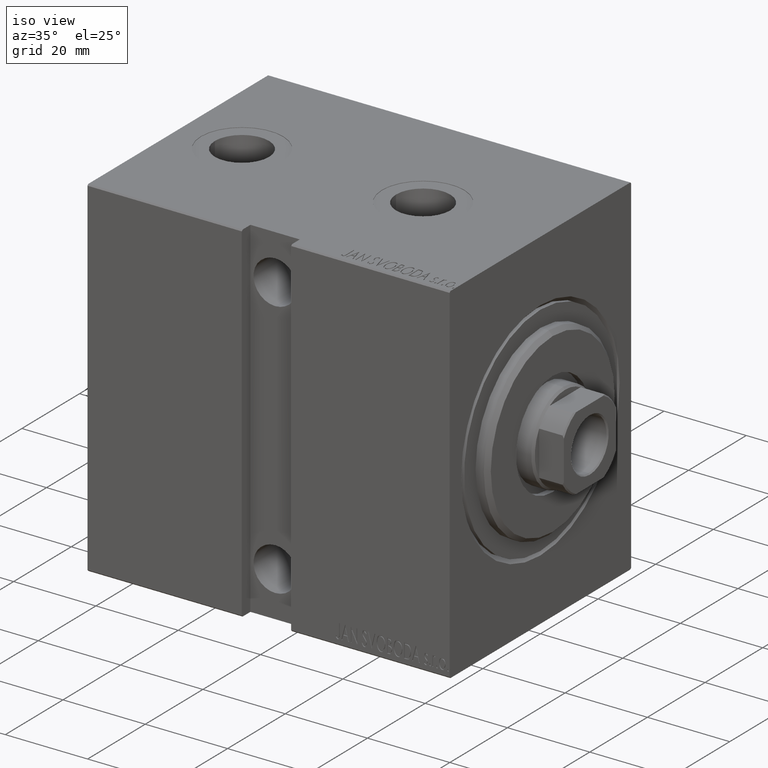
[diagram: clean part render]
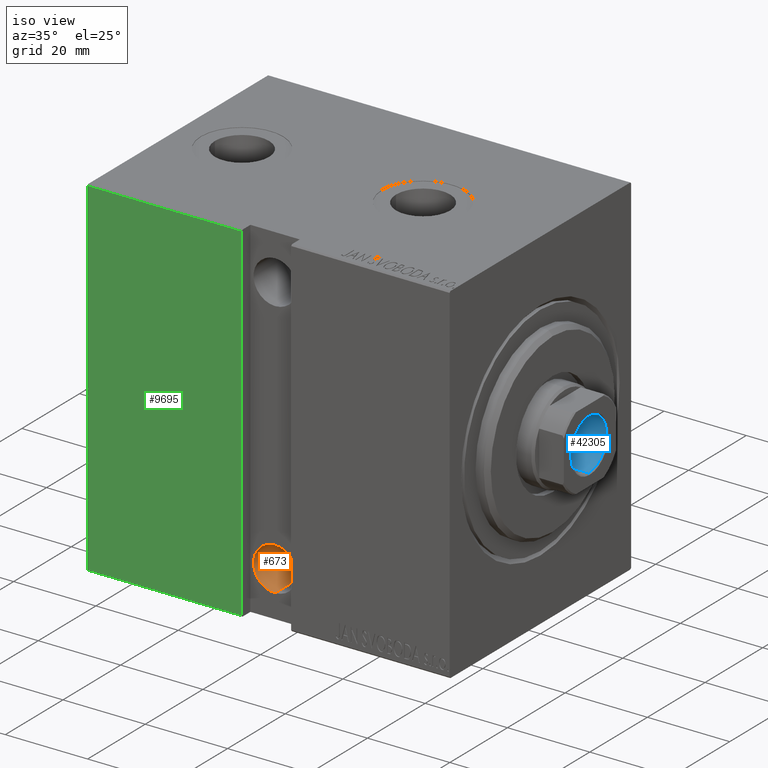
[diagram: same view with three faces highlighted in distinct colors, each labeled with its STEP entity id]
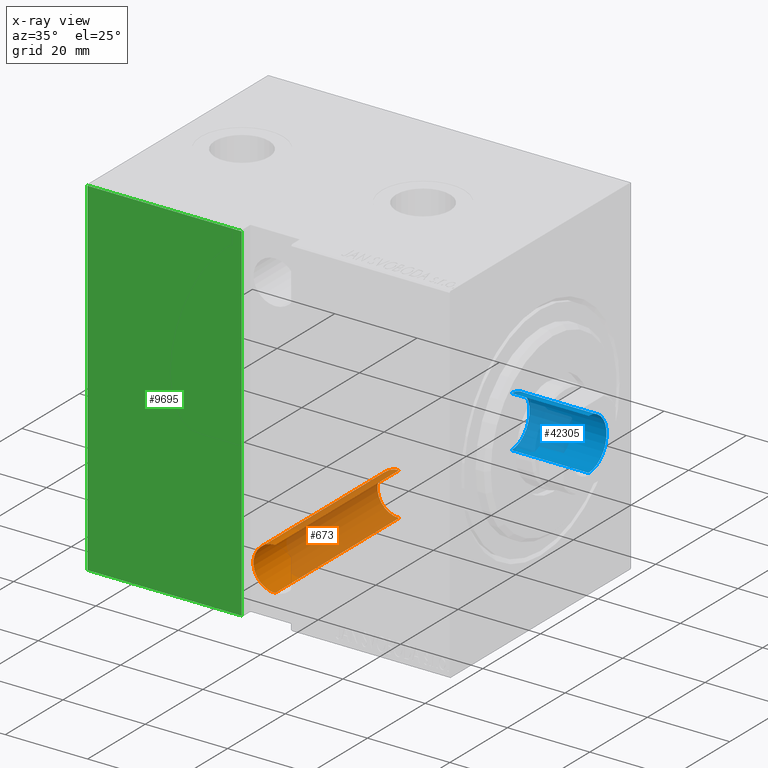
[diagram: x-ray of the same camera — body ghosted, the three highlighted faces saturated]
A machine part, iso view with three faces highlighted in distinct colors.
The next image is the same camera in x-ray (body ghosted, the three faces saturated) — at least one of them is partly hidden behind the body in this view.
Their STEP definitions:

[orange] entity #673 — the highlighted cylindrical surface (edge-blend (fillet) strip) has radius 5.25 mm, axis along (0, -1, 0).
#673 = ADVANCED_FACE ( 'NONE', ( #22963 ), #36144, .F. ) ;
#1155 = DIRECTION ( 'NONE',  ( -0.000000000000000000, 1.000000000000000000, -0.000000000000000000 ) ) ;
#3846 = EDGE_LOOP ( 'NONE', ( #25805, #42369, #22878, #38812 ) ) ;
#4319 = VECTOR ( 'NONE', #21585, 1000.000000000000000 ) ;
#4584 = AXIS2_PLACEMENT_3D ( 'NONE', #19683, #1155, #33103 ) ;
#4712 = VECTOR ( 'NONE', #22901, 1000.000000000000000 ) ;
#6116 = CARTESIAN_POINT ( 'NONE',  ( 44.50000000000002132, 28.50000000000001066, -26.25000000000000355 ) ) ;
#6206 = EDGE_CURVE ( 'NONE', #39913, #14501, #20067, .T. ) ;
#6764 = AXIS2_PLACEMENT_3D ( 'NONE', #39482, #19753, #6955 ) ;
#6955 = DIRECTION ( 'NONE',  ( 0.000000000000000000, 0.000000000000000000, -1.000000000000000000 ) ) ;
#10234 = EDGE_CURVE ( 'NONE', #32511, #39913, #38727, .T. ) ;
#11720 = CARTESIAN_POINT ( 'NONE',  ( 44.50000000000002132, -14.49999999999999645, -26.25000000000000355 ) ) ;
#12645 = CARTESIAN_POINT ( 'NONE',  ( 44.50000000000002132, -14.49999999999999822, -31.50000000000000000 ) ) ;
#14501 = VERTEX_POINT ( 'NONE', #30949 ) ;
#17406 = DIRECTION ( 'NONE',  ( -0.000000000000000000, 1.000000000000000000, -1.963837897332234442E-16 ) ) ;
#18744 = EDGE_CURVE ( 'NONE', #32511, #29486, #38462, .T. ) ;
#19683 = CARTESIAN_POINT ( 'NONE',  ( 44.50000000000002132, -31.50000000000002842, -31.50000000000000000 ) ) ;
#19753 = DIRECTION ( 'NONE',  ( 0.000000000000000000, -1.000000000000000000, 0.000000000000000000 ) ) ;
#20067 = LINE ( 'NONE', #29597, #4712 ) ;
#21585 = DIRECTION ( 'NONE',  ( -0.000000000000000000, 1.000000000000000000, -0.000000000000000000 ) ) ;
#22878 = ORIENTED_EDGE ( 'NONE', *, *, #18744, .T. ) ;
#22901 = DIRECTION ( 'NONE',  ( -0.000000000000000000, 1.000000000000000000, -0.000000000000000000 ) ) ;
#22963 = FACE_OUTER_BOUND ( 'NONE', #3846, .T. ) ;
#23280 = DIRECTION ( 'NONE',  ( 0.000000000000000000, -3.304235192336776991E-16, -1.000000000000000000 ) ) ;
#25805 = ORIENTED_EDGE ( 'NONE', *, *, #6206, .F. ) ;
#26456 = CARTESIAN_POINT ( 'NONE',  ( 44.50000000000002132, -14.50000000000000000, -36.75000000000000000 ) ) ;
#27053 = EDGE_CURVE ( 'NONE', #14501, #29486, #32357, .T. ) ;
#28525 = CARTESIAN_POINT ( 'NONE',  ( 44.50000000000002132, -31.50000000000002842, -26.25000000000000355 ) ) ;
#29486 = VERTEX_POINT ( 'NONE', #6116 ) ;
#29597 = CARTESIAN_POINT ( 'NONE',  ( 44.50000000000002132, -31.50000000000002842, -36.75000000000000000 ) ) ;
#30949 = CARTESIAN_POINT ( 'NONE',  ( 44.50000000000002132, 28.50000000000001066, -36.75000000000000000 ) ) ;
#32357 = CIRCLE ( 'NONE', #6764, 5.249999999999997335 ) ;
#32511 = VERTEX_POINT ( 'NONE', #11720 ) ;
#33103 = DIRECTION ( 'NONE',  ( 0.000000000000000000, 0.000000000000000000, 1.000000000000000000 ) ) ;
#36144 = CYLINDRICAL_SURFACE ( 'NONE', #4584, 5.249999999999997335 ) ;
#36636 = AXIS2_PLACEMENT_3D ( 'NONE', #12645, #17406, #23280 ) ;
#38462 = LINE ( 'NONE', #28525, #4319 ) ;
#38727 = CIRCLE ( 'NONE', #36636, 5.249999999999997335 ) ;
#38812 = ORIENTED_EDGE ( 'NONE', *, *, #27053, .F. ) ;
#39482 = CARTESIAN_POINT ( 'NONE',  ( 44.50000000000002132, 28.50000000000001066, -31.50000000000000000 ) ) ;
#39913 = VERTEX_POINT ( 'NONE', #26456 ) ;
#42369 = ORIENTED_EDGE ( 'NONE', *, *, #10234, .F. ) ;

[blue] entity #42305 — the highlighted cylindrical surface (edge-blend (fillet) strip) has radius 6.25 mm, axis along (1, 0, -0).
#340 = CARTESIAN_POINT ( 'NONE',  ( -6.249999999999995559, 7.654042494670950704E-16, 68.99999999999998579 ) ) ;
#969 = LINE ( 'NONE', #30496, #38597 ) ;
#2472 = DIRECTION ( 'NONE',  ( -0.000000000000000000, -0.000000000000000000, 1.000000000000000000 ) ) ;
#3205 = CARTESIAN_POINT ( 'NONE',  ( 0.000000000000000000, 0.000000000000000000, 87.69999999999998863 ) ) ;
#4174 = EDGE_CURVE ( 'NONE', #41506, #21608, #969, .T. ) ;
#4243 = DIRECTION ( 'NONE',  ( -0.000000000000000000, -0.000000000000000000, 1.000000000000000000 ) ) ;
#6926 = AXIS2_PLACEMENT_3D ( 'NONE', #12552, #36153, #32068 ) ;
#7165 = CARTESIAN_POINT ( 'NONE',  ( 6.249999999999996447, 0.000000000000000000, 87.69999999999998863 ) ) ;
#9660 = EDGE_LOOP ( 'NONE', ( #42423, #22548, #18025, #30056 ) ) ;
#12552 = CARTESIAN_POINT ( 'NONE',  ( 0.000000000000000000, 0.000000000000000000, 88.00000000000000000 ) ) ;
#13392 = CARTESIAN_POINT ( 'NONE',  ( -6.249999999999996447, 7.654042494670952676E-16, 87.69999999999998863 ) ) ;
#15728 = DIRECTION ( 'NONE',  ( 1.000000000000000000, 0.000000000000000000, 0.000000000000000000 ) ) ;
#16556 = LINE ( 'NONE', #30005, #26946 ) ;
#17460 = CARTESIAN_POINT ( 'NONE',  ( 6.249999999999995559, 0.000000000000000000, 68.99999999999998579 ) ) ;
#18025 = ORIENTED_EDGE ( 'NONE', *, *, #31157, .T. ) ;
#18993 = CARTESIAN_POINT ( 'NONE',  ( 0.000000000000000000, 0.000000000000000000, 68.99999999999998579 ) ) ;
#19739 = EDGE_CURVE ( 'NONE', #19774, #41506, #24347, .T. ) ;
#19774 = VERTEX_POINT ( 'NONE', #17460 ) ;
#21608 = VERTEX_POINT ( 'NONE', #13392 ) ;
#22364 = DIRECTION ( 'NONE',  ( 1.000000000000000000, 0.000000000000000000, 0.000000000000000000 ) ) ;
#22548 = ORIENTED_EDGE ( 'NONE', *, *, #19739, .F. ) ;
#24240 = CIRCLE ( 'NONE', #37363, 6.249999999999996447 ) ;
#24347 = CIRCLE ( 'NONE', #34005, 6.249999999999995559 ) ;
#26946 = VECTOR ( 'NONE', #29567, 1000.000000000000000 ) ;
#29567 = DIRECTION ( 'NONE',  ( -0.000000000000000000, -0.000000000000000000, 1.000000000000000000 ) ) ;
#30005 = CARTESIAN_POINT ( 'NONE',  ( 6.249999999999996447, 0.000000000000000000, 88.00000000000000000 ) ) ;
#30056 = ORIENTED_EDGE ( 'NONE', *, *, #40601, .T. ) ;
#30496 = CARTESIAN_POINT ( 'NONE',  ( -6.249999999999996447, 7.654042494670952676E-16, 88.00000000000000000 ) ) ;
#31157 = EDGE_CURVE ( 'NONE', #19774, #42099, #16556, .T. ) ;
#32068 = DIRECTION ( 'NONE',  ( 1.000000000000000000, 0.000000000000000000, 0.000000000000000000 ) ) ;
#34005 = AXIS2_PLACEMENT_3D ( 'NONE', #18993, #2472, #15728 ) ;
#35548 = DIRECTION ( 'NONE',  ( 0.000000000000000000, 0.000000000000000000, 1.000000000000000000 ) ) ;
#36153 = DIRECTION ( 'NONE',  ( -0.000000000000000000, -0.000000000000000000, 1.000000000000000000 ) ) ;
#37363 = AXIS2_PLACEMENT_3D ( 'NONE', #3205, #35548, #22364 ) ;
#38597 = VECTOR ( 'NONE', #4243, 1000.000000000000000 ) ;
#39201 = FACE_OUTER_BOUND ( 'NONE', #9660, .T. ) ;
#40601 = EDGE_CURVE ( 'NONE', #42099, #21608, #24240, .T. ) ;
#41506 = VERTEX_POINT ( 'NONE', #340 ) ;
#42099 = VERTEX_POINT ( 'NONE', #7165 ) ;
#42305 = ADVANCED_FACE ( 'NONE', ( #39201 ), #42471, .F. ) ;
#42423 = ORIENTED_EDGE ( 'NONE', *, *, #4174, .F. ) ;
#42471 = CYLINDRICAL_SURFACE ( 'NONE', #6926, 6.249999999999996447 ) ;

[green] entity #9695 — the highlighted planar face has unit normal (-0, 1, -0).
#1820 = LINE ( 'NONE', #18145, #16578 ) ;
#5592 = CARTESIAN_POINT ( 'NONE',  ( 88.00000000000000000, 31.50000000000001421, -42.50000000000000711 ) ) ;
#8202 = PLANE ( 'NONE',  #24921 ) ;
#9695 = ADVANCED_FACE ( 'NONE', ( #31621 ), #8202, .F. ) ;
#9814 = LINE ( 'NONE', #32988, #11763 ) ;
#11763 = VECTOR ( 'NONE', #30629, 1000.000000000000000 ) ;
#12321 = VERTEX_POINT ( 'NONE', #25130 ) ;
#13130 = ORIENTED_EDGE ( 'NONE', *, *, #36016, .T. ) ;
#13198 = VERTEX_POINT ( 'NONE', #17816 ) ;
#16578 = VECTOR ( 'NONE', #21611, 1000.000000000000000 ) ;
#17816 = CARTESIAN_POINT ( 'NONE',  ( 50.49999999999999289, 31.50000000000000711, -42.20000000000000284 ) ) ;
#18145 = CARTESIAN_POINT ( 'NONE',  ( 88.00000000000000000, 31.50000000000001421, -42.20000000000000284 ) ) ;
#18182 = EDGE_CURVE ( 'NONE', #34267, #13198, #22537, .T. ) ;
#18308 = CARTESIAN_POINT ( 'NONE',  ( 50.50000000000000711, 31.50000000000000711, 42.20000000000001705 ) ) ;
#19064 = CARTESIAN_POINT ( 'NONE',  ( 50.49999999999999289, 31.50000000000000711, -42.50000000000000711 ) ) ;
#19376 = VECTOR ( 'NONE', #37719, 1000.000000000000000 ) ;
#21611 = DIRECTION ( 'NONE',  ( -1.000000000000000000, 0.000000000000000000, 0.000000000000000000 ) ) ;
#21695 = CARTESIAN_POINT ( 'NONE',  ( 88.00000000000000000, 31.50000000000001421, -42.50000000000000711 ) ) ;
#22537 = LINE ( 'NONE', #19064, #38215 ) ;
#24921 = AXIS2_PLACEMENT_3D ( 'NONE', #5592, #41601, #42025 ) ;
#25130 = CARTESIAN_POINT ( 'NONE',  ( 88.00000000000000000, 31.50000000000001421, -42.20000000000000284 ) ) ;
#25387 = ORIENTED_EDGE ( 'NONE', *, *, #42159, .F. ) ;
#27784 = LINE ( 'NONE', #21695, #19376 ) ;
#29511 = ORIENTED_EDGE ( 'NONE', *, *, #18182, .F. ) ;
#30629 = DIRECTION ( 'NONE',  ( 1.000000000000000000, 0.000000000000000000, 0.000000000000000000 ) ) ;
#31182 = EDGE_LOOP ( 'NONE', ( #25387, #13130, #29511, #41208 ) ) ;
#31621 = FACE_OUTER_BOUND ( 'NONE', #31182, .T. ) ;
#32477 = DIRECTION ( 'NONE',  ( -1.632680918566407286E-16, -0.000000000000000000, -1.000000000000000000 ) ) ;
#32988 = CARTESIAN_POINT ( 'NONE',  ( 88.00000000000000000, 31.50000000000000000, 42.20000000000001705 ) ) ;
#33286 = EDGE_CURVE ( 'NONE', #34267, #40880, #9814, .T. ) ;
#34267 = VERTEX_POINT ( 'NONE', #18308 ) ;
#36016 = EDGE_CURVE ( 'NONE', #12321, #13198, #1820, .T. ) ;
#37719 = DIRECTION ( 'NONE',  ( 0.000000000000000000, -1.632680918566406300E-16, 1.000000000000000000 ) ) ;
#38215 = VECTOR ( 'NONE', #32477, 1000.000000000000000 ) ;
#39734 = CARTESIAN_POINT ( 'NONE',  ( 88.00000000000000000, 31.50000000000000000, 42.20000000000001705 ) ) ;
#40880 = VERTEX_POINT ( 'NONE', #39734 ) ;
#41208 = ORIENTED_EDGE ( 'NONE', *, *, #33286, .T. ) ;
#41601 = DIRECTION ( 'NONE',  ( 0.000000000000000000, -1.000000000000000000, -1.632680918566406300E-16 ) ) ;
#42025 = DIRECTION ( 'NONE',  ( 0.000000000000000000, 1.632680918566406300E-16, -1.000000000000000000 ) ) ;
#42159 = EDGE_CURVE ( 'NONE', #12321, #40880, #27784, .T. ) ;